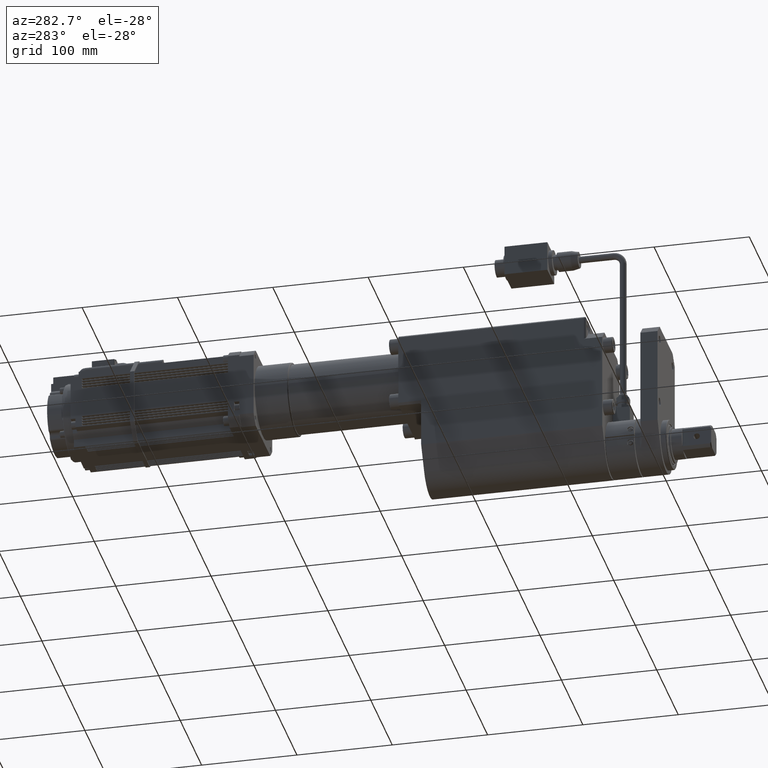
[diagram: clean part render]
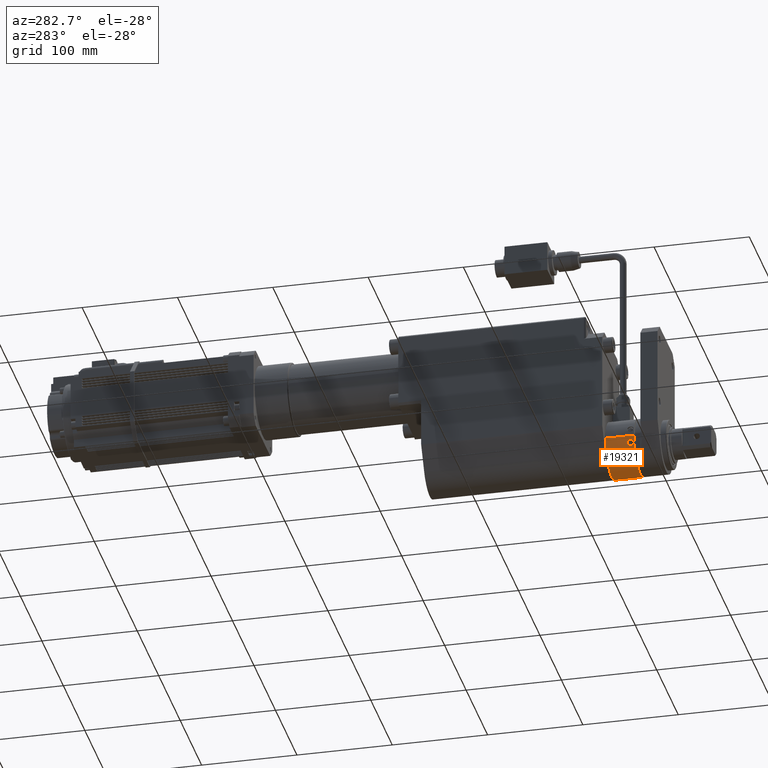
[diagram: same view with one face highlighted and labeled with its STEP entity id]
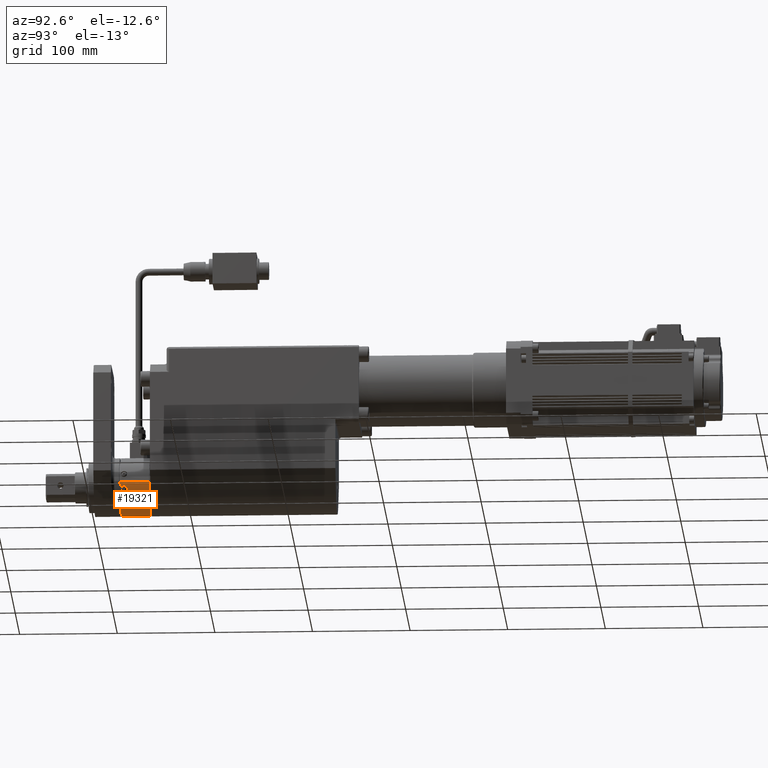
[diagram: same view with one face highlighted and labeled with its STEP entity id]
A machine part, auxiliary view. The second image highlights one B-rep face of the part: STEP entity #19321.
A second angle (auxiliary view) of the same face is appended — the face is thin or edge-on in the first view.
In plain terms, the highlighted cylindrical surface (edge-blend (fillet) strip) has radius 30 mm, axis along (-0, 1, -0).
Its self-contained STEP definition (entity closure, byte-faithful):
#751=FACE_BOUND('',#2715,.T.);
#752=FACE_BOUND('',#2716,.T.);
#1177=B_SPLINE_CURVE_WITH_KNOTS('',3,(#30220,#30221,#30222,#30223,#30224,
#30225,#30226,#30227,#30228,#30229,#30230,#30231,#30232,#30233,#30234,#30235,
#30236,#30237),.UNSPECIFIED.,.F.,.F.,(4,2,2,2,2,2,2,2,4),(0.,0.122526719799296,
0.245053439598591,0.367579584028421,0.490105728458251,0.612631872888081,
0.73515801731791,0.857684737117206,0.980211456916501),.UNSPECIFIED.);
#1178=B_SPLINE_CURVE_WITH_KNOTS('',3,(#30238,#30239,#30240,#30241,#30242,
#30243,#30244,#30245,#30246,#30247,#30248,#30249,#30250,#30251,#30252,#30253,
#30254,#30255),.UNSPECIFIED.,.F.,.F.,(4,2,2,2,2,2,2,2,4),(0.980211456916501,
1.1027381767158,1.22526489651509,1.34779104094492,1.47031718537475,1.59284332980458,
1.71536947423441,1.83789619403371,1.960422913833),.UNSPECIFIED.);
#1179=B_SPLINE_CURVE_WITH_KNOTS('',3,(#30271,#30272,#30273,#30274,#30275,
#30276,#30277,#30278,#30279,#30280,#30281,#30282,#30283,#30284,#30285,#30286,
#30287,#30288),.UNSPECIFIED.,.F.,.F.,(4,2,2,2,2,2,2,2,4),(0.,0.122526719799296,
0.245053439598591,0.367579584028421,0.490105728458251,0.61263187288808,
0.73515801731791,0.857684737117206,0.980211456916501),.UNSPECIFIED.);
#1180=B_SPLINE_CURVE_WITH_KNOTS('',3,(#30289,#30290,#30291,#30292,#30293,
#30294,#30295,#30296,#30297,#30298,#30299,#30300,#30301,#30302,#30303,#30304,
#30305,#30306),.UNSPECIFIED.,.F.,.F.,(4,2,2,2,2,2,2,2,4),(0.980211456916501,
1.1027381767158,1.22526489651509,1.34779104094492,1.47031718537475,1.59284332980458,
1.71536947423441,1.83789619403371,1.960422913833),.UNSPECIFIED.);
#1595=FACE_OUTER_BOUND('',#2714,.T.);
#2714=EDGE_LOOP('',(#14197,#14198,#14199,#14200));
#2715=EDGE_LOOP('',(#14201,#14202));
#2716=EDGE_LOOP('',(#14203,#14204));
#3855=CIRCLE('',#20687,30.);
#3856=CIRCLE('',#20688,30.);
#4759=LINE('',#30263,#6517);
#4760=LINE('',#30267,#6518);
#6517=VECTOR('',#23479,10.);
#6518=VECTOR('',#23482,10.);
#8456=VERTEX_POINT('',#30218);
#8457=VERTEX_POINT('',#30219);
#8459=VERTEX_POINT('',#30261);
#8460=VERTEX_POINT('',#30262);
#8461=VERTEX_POINT('',#30264);
#8462=VERTEX_POINT('',#30266);
#8463=VERTEX_POINT('',#30269);
#8464=VERTEX_POINT('',#30270);
#10595=EDGE_CURVE('',#8456,#8457,#1177,.T.);
#10596=EDGE_CURVE('',#8457,#8456,#1178,.T.);
#10599=EDGE_CURVE('',#8459,#8460,#4759,.T.);
#10600=EDGE_CURVE('',#8461,#8460,#3855,.T.);
#10601=EDGE_CURVE('',#8461,#8462,#4760,.T.);
#10602=EDGE_CURVE('',#8462,#8459,#3856,.T.);
#10603=EDGE_CURVE('',#8463,#8464,#1179,.T.);
#10604=EDGE_CURVE('',#8464,#8463,#1180,.T.);
#14197=ORIENTED_EDGE('',*,*,#10599,.T.);
#14198=ORIENTED_EDGE('',*,*,#10600,.F.);
#14199=ORIENTED_EDGE('',*,*,#10601,.T.);
#14200=ORIENTED_EDGE('',*,*,#10602,.T.);
#14201=ORIENTED_EDGE('',*,*,#10595,.T.);
#14202=ORIENTED_EDGE('',*,*,#10596,.T.);
#14203=ORIENTED_EDGE('',*,*,#10603,.T.);
#14204=ORIENTED_EDGE('',*,*,#10604,.T.);
#18863=CYLINDRICAL_SURFACE('',#20686,30.);
#19321=ADVANCED_FACE('',(#1595,#751,#752),#18863,.T.);
#20686=AXIS2_PLACEMENT_3D('',#30260,#23477,#23478);
#20687=AXIS2_PLACEMENT_3D('',#30265,#23480,#23481);
#20688=AXIS2_PLACEMENT_3D('',#30268,#23483,#23484);
#23477=DIRECTION('center_axis',(-3.22685854209893E-19,1.,-1.2042800027951E-18));
#23478=DIRECTION('ref_axis',(-1.,-3.22685854209894E-19,-9.5832630025994E-16));
#23479=DIRECTION('',(-3.22685854209893E-19,1.,-1.2042800027951E-18));
#23480=DIRECTION('center_axis',(-3.22685854209893E-19,1.,-1.2042800027951E-18));
#23481=DIRECTION('ref_axis',(-1.,-3.22685854209894E-19,-9.5832630025994E-16));
#23482=DIRECTION('',(3.22685854209893E-19,-1.,1.2042800027951E-18));
#23483=DIRECTION('center_axis',(-3.22685854209893E-19,1.,-1.2042800027951E-18));
#23484=DIRECTION('ref_axis',(-1.,-3.22685854209894E-19,-9.5832630025994E-16));
#30218=CARTESIAN_POINT('',(-27.9660678390103,31.,-10.8581328792696));
#30219=CARTESIAN_POINT('',(-29.6483916321767,31.,-4.57961500839066));
#30220=CARTESIAN_POINT('Ctrl Pts',(-27.9660678390103,31.,-10.8581328792696));
#30221=CARTESIAN_POINT('Ctrl Pts',(-27.9660678390103,31.408422399331,-10.8581328792696));
#30222=CARTESIAN_POINT('Ctrl Pts',(-27.9961499047184,31.8438475421403,-10.7816226723547));
#30223=CARTESIAN_POINT('Ctrl Pts',(-28.114253870215,32.6444846022651,-10.4697911209429));
#30224=CARTESIAN_POINT('Ctrl Pts',(-28.201799908238,33.0097240215206,-10.234360351036));
#30225=CARTESIAN_POINT('Ctrl Pts',(-28.3938732731634,33.58646870203,-9.6887362241457));
#30226=CARTESIAN_POINT('Ctrl Pts',(-28.5111696389469,33.8365370035013,-9.34204140694037));
#30227=CARTESIAN_POINT('Ctrl Pts',(-28.7504907416898,34.1683114923734,-8.57728476489543));
#30228=CARTESIAN_POINT('Ctrl Pts',(-28.8720677896673,34.2500000000001,-8.15907524407699));
#30229=CARTESIAN_POINT('Ctrl Pts',(-29.0834817876768,34.2500000000001,-7.37006746207434));
#30230=CARTESIAN_POINT('Ctrl Pts',(-29.1872977360204,34.1683114923734,-6.94709886895228));
#30231=CARTESIAN_POINT('Ctrl Pts',(-29.3624179024057,33.8365370035013,-6.16513963785701));
#30232=CARTESIAN_POINT('Ctrl Pts',(-29.4341836784683,33.58646870203,-5.80624493590506));
#30233=CARTESIAN_POINT('Ctrl Pts',(-29.5406553284977,33.0097240215206,-5.23768389863766));
#30234=CARTESIAN_POINT('Ctrl Pts',(-29.5825536205226,32.6444846022651,-4.99002185205426));
#30235=CARTESIAN_POINT('Ctrl Pts',(-29.6361883618207,31.8438475421403,-4.66091582408183));
#30236=CARTESIAN_POINT('Ctrl Pts',(-29.6483916321767,31.408422399331,-4.57961500839066));
#30237=CARTESIAN_POINT('Ctrl Pts',(-29.6483916321767,31.0000000000001,-4.57961500839066));
#30238=CARTESIAN_POINT('Ctrl Pts',(-29.6483916321767,31.,-4.57961500839066));
#30239=CARTESIAN_POINT('Ctrl Pts',(-29.6483916321767,30.5915776006691,-4.57961500839066));
#30240=CARTESIAN_POINT('Ctrl Pts',(-29.6361883618207,30.1561524578598,-4.66091582408183));
#30241=CARTESIAN_POINT('Ctrl Pts',(-29.5825536205226,29.355515397735,-4.99002185205426));
#30242=CARTESIAN_POINT('Ctrl Pts',(-29.5406553284977,28.9902759784795,-5.23768389863766));
#30243=CARTESIAN_POINT('Ctrl Pts',(-29.4341836784683,28.4135312979701,-5.80624493590506));
#30244=CARTESIAN_POINT('Ctrl Pts',(-29.3624179024057,28.1634629964988,-6.16513963785701));
#30245=CARTESIAN_POINT('Ctrl Pts',(-29.1872977360204,27.8316885076267,-6.94709886895228));
#30246=CARTESIAN_POINT('Ctrl Pts',(-29.0834817876768,27.75,-7.37006746207434));
#30247=CARTESIAN_POINT('Ctrl Pts',(-28.8720677896673,27.75,-8.15907524407699));
#30248=CARTESIAN_POINT('Ctrl Pts',(-28.7504907416898,27.8316885076267,-8.57728476489543));
#30249=CARTESIAN_POINT('Ctrl Pts',(-28.5111696389469,28.1634629964988,-9.34204140694037));
#30250=CARTESIAN_POINT('Ctrl Pts',(-28.3938732731634,28.4135312979701,-9.6887362241457));
#30251=CARTESIAN_POINT('Ctrl Pts',(-28.201799908238,28.9902759784795,-10.234360351036));
#30252=CARTESIAN_POINT('Ctrl Pts',(-28.114253870215,29.355515397735,-10.4697911209429));
#30253=CARTESIAN_POINT('Ctrl Pts',(-27.9961499047184,30.1561524578598,-10.7816226723547));
#30254=CARTESIAN_POINT('Ctrl Pts',(-27.9660678390103,30.5915776006691,-10.8581328792696));
#30255=CARTESIAN_POINT('Ctrl Pts',(-27.9660678390103,31.,-10.8581328792696));
#30260=CARTESIAN_POINT('Origin',(-5.06295198277671E-14,27.,-1.20931560706642E-15));
#30261=CARTESIAN_POINT('',(-29.9958330439413,27.,-0.50000000000003));
#30262=CARTESIAN_POINT('',(-29.9958330439413,57.,-0.50000000000003));
#30263=CARTESIAN_POINT('',(-29.9958330439413,27.,-0.50000000000003));
#30264=CARTESIAN_POINT('',(29.9958330439412,57.,-0.499999999999973));
#30265=CARTESIAN_POINT('Origin',(-5.06392004033934E-14,57.,-1.24544400715027E-15));
#30266=CARTESIAN_POINT('',(29.9958330439412,27.,-0.499999999999973));
#30267=CARTESIAN_POINT('',(29.9958330439412,27.,-0.499999999999973));
#30268=CARTESIAN_POINT('Origin',(-5.06295198277671E-14,27.,-1.20931560706642E-15));
#30269=CARTESIAN_POINT('',(29.6483916321766,31.,-4.57961500839057));
#30270=CARTESIAN_POINT('',(27.9660678390102,31.,-10.8581328792695));
#30271=CARTESIAN_POINT('Ctrl Pts',(29.6483916321766,31.,-4.57961500839057));
#30272=CARTESIAN_POINT('Ctrl Pts',(29.6483916321766,31.408422399331,-4.57961500839057));
#30273=CARTESIAN_POINT('Ctrl Pts',(29.6361883618206,31.8438475421403,-4.66091582408174));
#30274=CARTESIAN_POINT('Ctrl Pts',(29.5825536205225,32.6444846022651,-4.99002185205416));
#30275=CARTESIAN_POINT('Ctrl Pts',(29.5406553284977,33.0097240215206,-5.23768389863757));
#30276=CARTESIAN_POINT('Ctrl Pts',(29.4341836784683,33.58646870203,-5.80624493590496));
#30277=CARTESIAN_POINT('Ctrl Pts',(29.3624179024057,33.8365370035013,-6.16513963785692));
#30278=CARTESIAN_POINT('Ctrl Pts',(29.1872977360203,34.1683114923734,-6.94709886895218));
#30279=CARTESIAN_POINT('Ctrl Pts',(29.0834817876768,34.25,-7.37006746207425));
#30280=CARTESIAN_POINT('Ctrl Pts',(28.8720677896673,34.2500000000001,-8.1590752440769));
#30281=CARTESIAN_POINT('Ctrl Pts',(28.7504907416897,34.1683114923734,-8.57728476489535));
#30282=CARTESIAN_POINT('Ctrl Pts',(28.5111696389468,33.8365370035013,-9.34204140694028));
#30283=CARTESIAN_POINT('Ctrl Pts',(28.3938732731633,33.58646870203,-9.68873622414561));
#30284=CARTESIAN_POINT('Ctrl Pts',(28.2017999082379,33.0097240215206,-10.2343603510359));
#30285=CARTESIAN_POINT('Ctrl Pts',(28.1142538702149,32.6444846022651,-10.4697911209428));
#30286=CARTESIAN_POINT('Ctrl Pts',(27.9961499047183,31.8438475421403,-10.7816226723546));
#30287=CARTESIAN_POINT('Ctrl Pts',(27.9660678390102,31.408422399331,-10.8581328792695));
#30288=CARTESIAN_POINT('Ctrl Pts',(27.9660678390102,31.,-10.8581328792695));
#30289=CARTESIAN_POINT('Ctrl Pts',(27.9660678390102,31.,-10.8581328792695));
#30290=CARTESIAN_POINT('Ctrl Pts',(27.9660678390102,30.5915776006691,-10.8581328792695));
#30291=CARTESIAN_POINT('Ctrl Pts',(27.9961499047183,30.1561524578598,-10.7816226723546));
#30292=CARTESIAN_POINT('Ctrl Pts',(28.1142538702149,29.355515397735,-10.4697911209428));
#30293=CARTESIAN_POINT('Ctrl Pts',(28.2017999082379,28.9902759784795,-10.2343603510359));
#30294=CARTESIAN_POINT('Ctrl Pts',(28.3938732731633,28.4135312979701,-9.68873622414561));
#30295=CARTESIAN_POINT('Ctrl Pts',(28.5111696389468,28.1634629964988,-9.34204140694028));
#30296=CARTESIAN_POINT('Ctrl Pts',(28.7504907416897,27.8316885076267,-8.57728476489534));
#30297=CARTESIAN_POINT('Ctrl Pts',(28.8720677896673,27.75,-8.1590752440769));
#30298=CARTESIAN_POINT('Ctrl Pts',(29.0834817876768,27.75,-7.37006746207426));
#30299=CARTESIAN_POINT('Ctrl Pts',(29.1872977360203,27.8316885076267,-6.94709886895219));
#30300=CARTESIAN_POINT('Ctrl Pts',(29.3624179024057,28.1634629964988,-6.16513963785692));
#30301=CARTESIAN_POINT('Ctrl Pts',(29.4341836784683,28.4135312979701,-5.80624493590497));
#30302=CARTESIAN_POINT('Ctrl Pts',(29.5406553284977,28.9902759784795,-5.23768389863757));
#30303=CARTESIAN_POINT('Ctrl Pts',(29.5825536205225,29.355515397735,-4.99002185205416));
#30304=CARTESIAN_POINT('Ctrl Pts',(29.6361883618206,30.1561524578598,-4.66091582408174));
#30305=CARTESIAN_POINT('Ctrl Pts',(29.6483916321766,30.5915776006691,-4.57961500839057));
#30306=CARTESIAN_POINT('Ctrl Pts',(29.6483916321766,31.,-4.57961500839057));